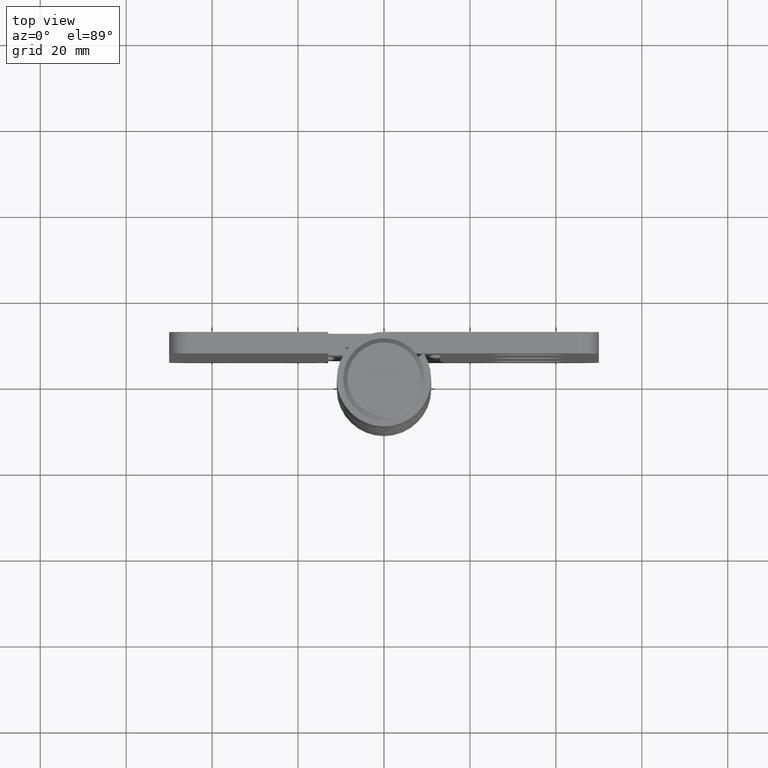
[diagram: clean part render]
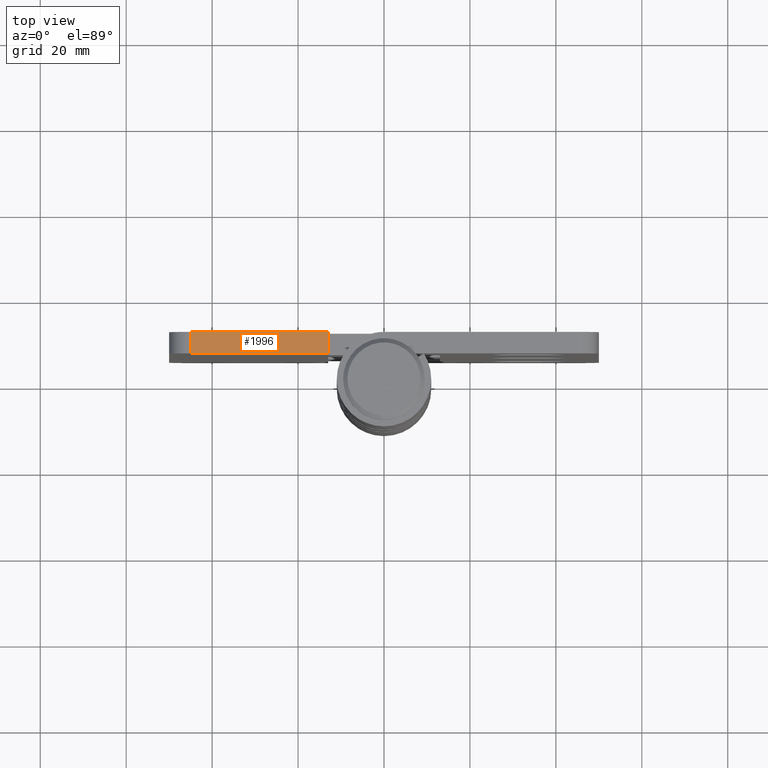
[diagram: same view with one face highlighted and labeled with its STEP entity id]
A machine part, top view. The second image highlights one B-rep face of the part: STEP entity #1996.
In plain terms, the highlighted face is a freeform B-spline surface patch.
Its self-contained STEP definition (entity closure, byte-faithful):
#1418=CARTESIAN_POINT('',(-45.0,11.0,130.0));
#1419=VERTEX_POINT('',#1418);
#1440=CARTESIAN_POINT('',(-45.0,6.0,130.0));
#1441=VERTEX_POINT('',#1440);
#1455=CARTESIAN_POINT('',(-45.0,11.0,130.0));
#1456=CARTESIAN_POINT('',(-45.0,6.0,130.0));
#1457=QUASI_UNIFORM_CURVE('',1,(#1455,#1456),.UNSPECIFIED.,.F.,.U.);
#1458=EDGE_CURVE('',#1419,#1441,#1457,.T.);
#1468=CARTESIAN_POINT('',(-13.0,6.0,130.0));
#1469=VERTEX_POINT('',#1468);
#1484=CARTESIAN_POINT('',(-13.0,11.0,130.0));
#1485=VERTEX_POINT('',#1484);
#1491=CARTESIAN_POINT('',(-13.0,6.0,130.0));
#1492=CARTESIAN_POINT('',(-13.0,11.0,130.0));
#1493=QUASI_UNIFORM_CURVE('',1,(#1491,#1492),.UNSPECIFIED.,.F.,.U.);
#1494=EDGE_CURVE('',#1469,#1485,#1493,.T.);
#1977=CARTESIAN_POINT('',(-46.598399937977788,5.750250009690968,130.0));
#1978=CARTESIAN_POINT('',(-11.401599203715330,5.750250009690968,130.0));
#1979=CARTESIAN_POINT('',(-46.598399937977788,11.249750124419480,130.0));
#1980=CARTESIAN_POINT('',(-11.401599203715330,11.249750124419480,130.0));
#1981=B_SPLINE_SURFACE_WITH_KNOTS('',1,1,((#1977,#1979),(#1978,#1980)),.UNSPECIFIED.,.F.,.F.,.U.,(2,2),(2,2),(0.0,35.196800734262467),(0.0,5.499500114728511),.UNSPECIFIED.);
#1982=CARTESIAN_POINT('',(-13.0,11.0,130.0));
#1983=CARTESIAN_POINT('',(-45.0,11.0,130.0));
#1984=QUASI_UNIFORM_CURVE('',1,(#1982,#1983),.UNSPECIFIED.,.F.,.U.);
#1985=EDGE_CURVE('',#1485,#1419,#1984,.T.);
#1986=ORIENTED_EDGE('',*,*,#1985,.T.);
#1987=ORIENTED_EDGE('',*,*,#1458,.T.);
#1988=CARTESIAN_POINT('',(-45.0,6.0,130.0));
#1989=CARTESIAN_POINT('',(-13.0,6.0,130.0));
#1990=QUASI_UNIFORM_CURVE('',1,(#1988,#1989),.UNSPECIFIED.,.F.,.U.);
#1991=EDGE_CURVE('',#1441,#1469,#1990,.T.);
#1992=ORIENTED_EDGE('',*,*,#1991,.T.);
#1993=ORIENTED_EDGE('',*,*,#1494,.T.);
#1994=EDGE_LOOP('',(#1986,#1987,#1992,#1993));
#1995=FACE_OUTER_BOUND('',#1994,.T.);
#1996=ADVANCED_FACE('',(#1995),#1981,.T.);